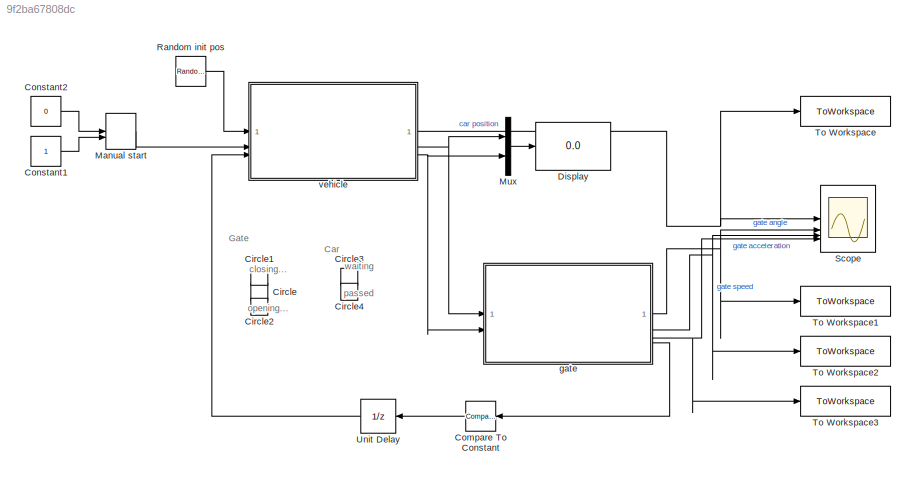
MODEL slx_9f2ba67808dc
KIND model
CONFIG AbsTol = auto
CONFIG EnableMultiTasking = off
CONFIG FixedStep = 0.2
CONFIG MaxStep = auto
CONFIG MinStep = auto
CONFIG RelTol = 1e-3
CONFIG SampleTimeConstraint = Unconstrained
CONFIG SolverName = FixedStepAuto
CONFIG StartTime = 0.0
CONFIG StopTime = 100
BLOCK [LampBlock] Circle
  Icon = Circle
  LabelPosition = Hide
BLOCK [LampBlock] Circle1
  Icon = Circle
  LabelPosition = Hide
BLOCK [LampBlock] Circle2
  Icon = Circle
  LabelPosition = Hide
BLOCK [LampBlock] Circle3
  Icon = Circle
  LabelPosition = Hide
BLOCK [LampBlock] Circle4
  Icon = Circle
  LabelPosition = Hide
BLOCK [Reference] Compare To Constant  REF=simulink/Logic and Bit
Operations/Compare
To Constant
  SourceBlock = simulink/Logic and Bit\nOperations/Compare\nTo Constant
  SourceType = Compare To Constant
BLOCK [Constant] Constant1
BLOCK [Constant] Constant2
  Value = 0
BLOCK [Display] Display
  Decimation = 1
BLOCK [ManualSwitch] Manual start
  CurrentSetting = 0
BLOCK [Mux] Mux
  DisplayOption = bar
  Inputs = 2
BLOCK [RandomNumber] Random init pos
  Mean = -15
  Variance = 5
BLOCK [Scope] Scope
  Floating = off
  NumInputPorts = 4
  ScopeSpecificationString = Simulink.scopes.TimeScopeBlockCfg('CurrentConfiguration', extmgr.ConfigurationSet(extmgr.Configuration('Core','General UI',true),extmgr.Configuration('Core','Source UI',true),extmgr.Configuration('Sources','WiredSimulink',true),extmgr.Configuration('Visuals','Time Domain',true,'SerializedDisplays',{struct('MinYLimReal','-37.36583','MaxYLimReal','18.72153','YLabelReal','','MinYLimMag','0.00000','Ma...<+3864ch>
BLOCK [ToWorkspace] To Workspace
  FixptAsFi = on
  MaxDataPoints = inf
  SampleTime = -1
  Save2DSignal = 2-D array (concatenate along first dimension)
  VariableName = car_position
BLOCK [ToWorkspace] To Workspace1
  FixptAsFi = on
  MaxDataPoints = inf
  SampleTime = -1
  Save2DSignal = 2-D array (concatenate along first dimension)
  VariableName = gate_angle
BLOCK [ToWorkspace] To Workspace2
  FixptAsFi = on
  MaxDataPoints = inf
  SampleTime = -1
  Save2DSignal = 2-D array (concatenate along first dimension)
  VariableName = gate_speed
BLOCK [ToWorkspace] To Workspace3
  FixptAsFi = on
  MaxDataPoints = inf
  SampleTime = -1
  Save2DSignal = 2-D array (concatenate along first dimension)
  VariableName = gate_acceleration
BLOCK [UnitDelay] Unit Delay
  HasFrameUpgradeWarning = on
  SampleTime = -1
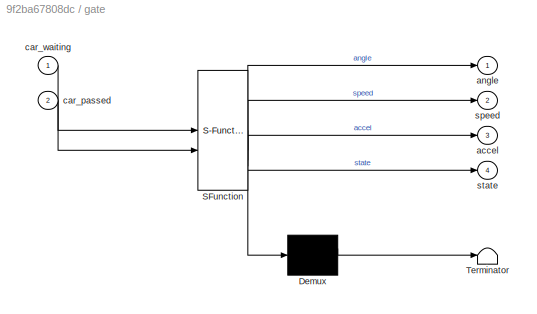
BLOCK [SubSystem] gate
  ErrorFcn = Stateflow.Translate.translate
  PermitHierarchicalResolution = ExplicitOnly
  SFBlockType = Chart
  TreatAsAtomicUnit = on
BLOCK [Demux] gate/ Demux 
  Outputs = 1
BLOCK [S-Function] gate/ SFunction 
  EnableBusSupport = on
  FunctionName = sf_sfun
  PortCounts = [2 5]
  SFcnIsStateOwnerBlock = off
  SFunctionDeploymentMode = off
  Tag = Stateflow S-Function 1
BLOCK [Terminator] gate/ Terminator 
BLOCK [Outport] gate/accel
  Port = 3
BLOCK [Outport] gate/angle
BLOCK [Inport] gate/car_passed
  Port = 2
BLOCK [Inport] gate/car_waiting
BLOCK [Outport] gate/speed
  Port = 2
BLOCK [Outport] gate/state
  Port = 4
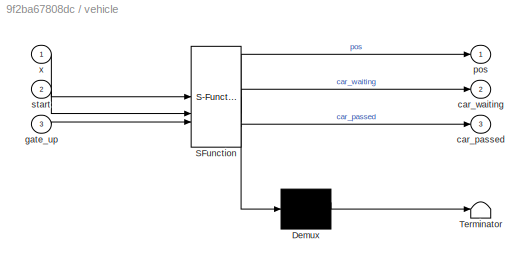
BLOCK [SubSystem] vehicle
  ErrorFcn = Stateflow.Translate.translate
  PermitHierarchicalResolution = ExplicitOnly
  SFBlockType = Chart
  TreatAsAtomicUnit = on
BLOCK [Demux] vehicle/ Demux 
  Outputs = 1
BLOCK [S-Function] vehicle/ SFunction 
  EnableBusSupport = on
  FunctionName = sf_sfun
  PortCounts = [3 4]
  SFcnIsStateOwnerBlock = off
  SFunctionDeploymentMode = off
  Tag = Stateflow S-Function 3
BLOCK [Terminator] vehicle/ Terminator 
BLOCK [Outport] vehicle/car_passed
  Port = 3
BLOCK [Outport] vehicle/car_waiting
  Port = 2
BLOCK [Inport] vehicle/gate_up
  Port = 3
BLOCK [Outport] vehicle/pos
BLOCK [Inport] vehicle/start
  Port = 2
BLOCK [Inport] vehicle/x
ANNOTATION (root): Car
ANNOTATION (root): Gate
ANNOTATION (root): closing...
ANNOTATION (root): opening...
ANNOTATION (root): passed
ANNOTATION (root): waiting
LINE Compare To Constant:1 -> Unit Delay:1
LINE Constant1:1 -> Manual start:2
LINE Constant2:1 -> Manual start:1
LINE Manual start:1 -> vehicle:2
LINE Mux:1 -> Display:1
LINE Random init pos:1 -> vehicle:1
LINE Unit Delay:1 -> vehicle:3
NET gate:1 -> Scope:2, To Workspace1:1
NET gate:2 -> Scope:3, To Workspace2:1
NET gate:3 -> Scope:4, To Workspace3:1
LINE gate:4 -> Compare To Constant:1
NET vehicle:1 -> Scope:1, To Workspace:1
NET vehicle:2 -> Mux:1, gate:1
NET vehicle:3 -> Mux:2, gate:2
note: NET lines group one-source signal fan-out (src -> all destinations, sorted); 1:1 wires keep LINE
CHART gate states=5 transitions=5
  STATE_LABEL 'Closed\nangle=0;\nspeed=0;\naccel=0;\nstate=0;'
  STATE_LABEL 'Rising\nstate=2;\nt=elapsed(sec);\n[angle,speed,accel]=gate_moving(state,t);\n'
  STATE_LABEL 'Closing\nstate=3;\nt=elapsed(sec);\n[angle,speed,accel]=gate_moving(state,t);\n'
  STATE_LABEL 'Open\nstate=1;\nangle=90;\nspeed=0;\naccel=0;'
  STATE_LABEL '[angle,speed,accel]=gate_moving(state,t)'
  STATE_LABEL 'SCRIPT:\nfunction [angle,speed,accel]=gate_moving(state,t)\n\nangle=0;\nspeed=0;\naccel=0;\nif state == 2  % opening\n\n    if t<4\n        accel=1;\n        angle=0.5*accel*t^2;\n        speed=accel*t;\n    elseif t>=4 && t<22.5\n        speed=4;\n        angle=8+speed*(t-4);\n        accel=0;\n    elseif t<=26.6\n        accel=-1;\n        angle=0.5*accel*(t-22.5)^2+4*(t-22.5)+82;\n        speed=accel*(t-22.5)+4;\n...<+468ch>'
CHART vehicle states=5 transitions=6
  STATE_LABEL 'idle\ninit=x;\npos=init;\ncar_waiting=0;\ncar_passed=0;'
  STATE_LABEL 'approaching\npos=init+v*elapsed(sec);\n'
  STATE_LABEL 'stop\ntmp=pos;\ncar_waiting=1;\ncar_passed=0;'
  STATE_LABEL 'pass\n\npos=tmp+v*elapsed(sec);\ncar_waiting=0;\nex:\npos=tmp+v*elapsed(sec);\ntmp=pos;'
  STATE_LABEL 'passed\n\npos=tmp+v*elapsed(sec);\ncar_passed=1;'
CHART  states=0 transitions=0
CHART  states=0 transitions=0
